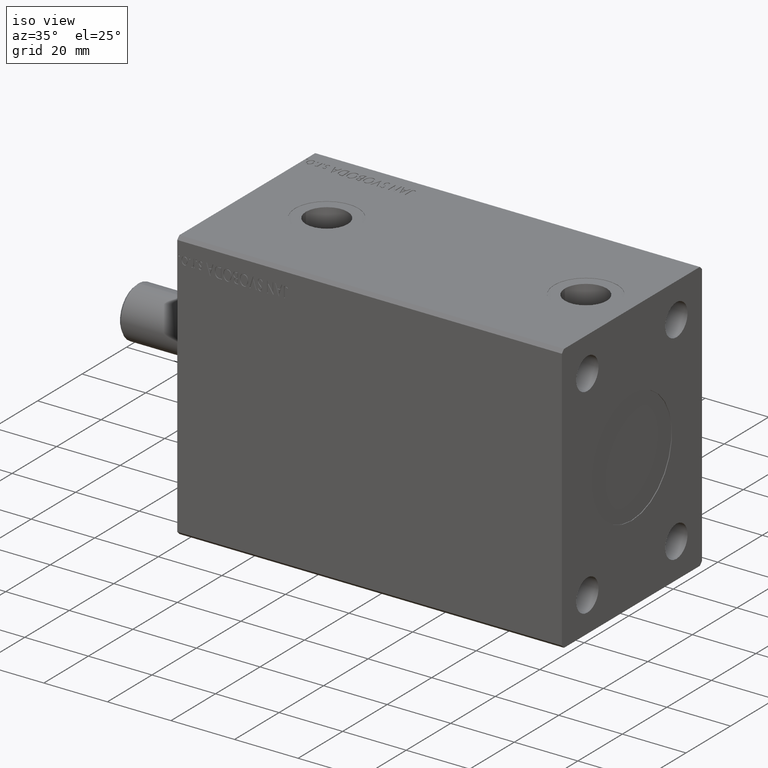
[diagram: clean part render]
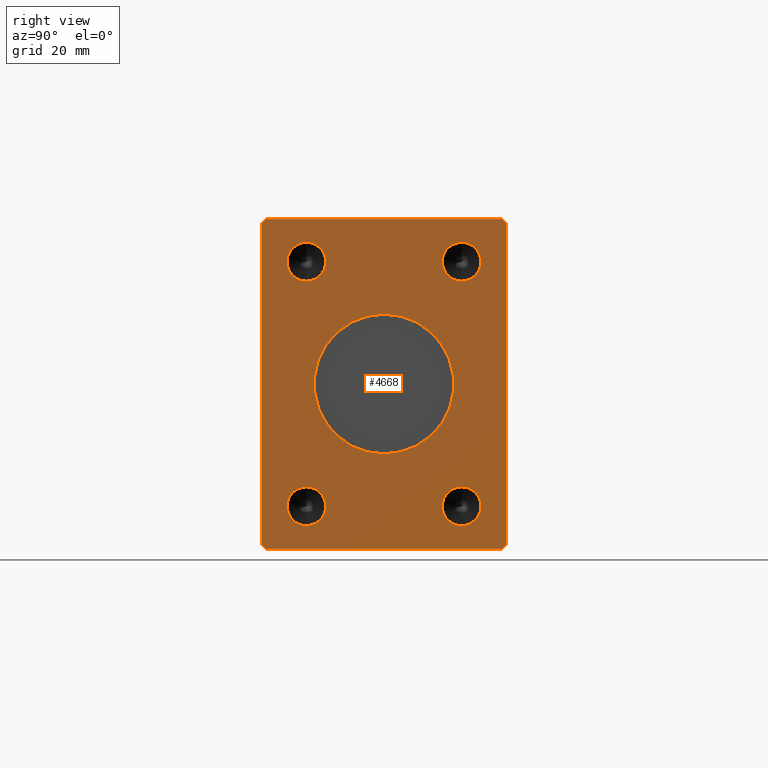
[diagram: tour spotlight — one face highlighted and labeled with its STEP entity id]
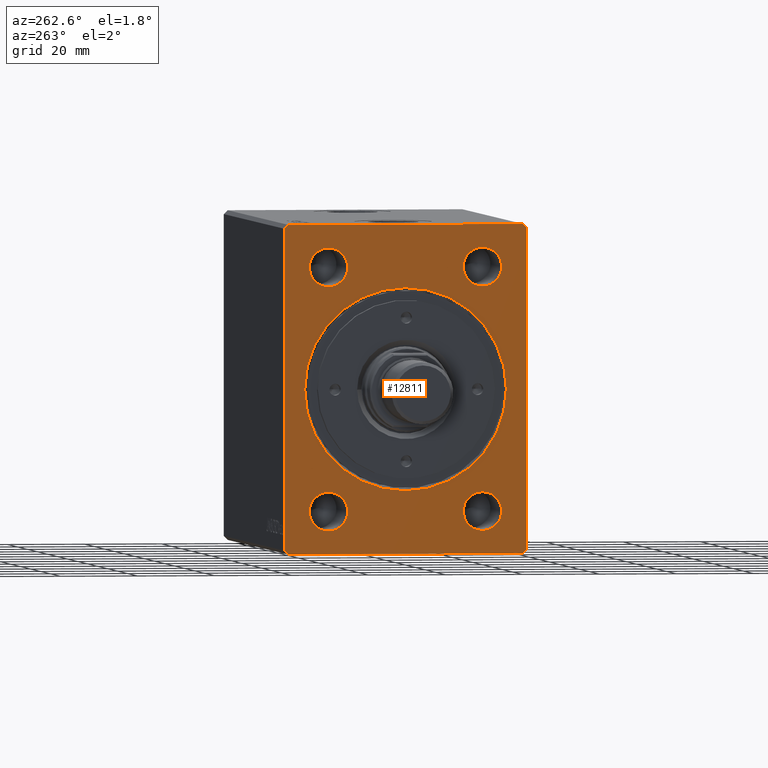
[diagram: tour spotlight — one face highlighted and labeled with its STEP entity id]
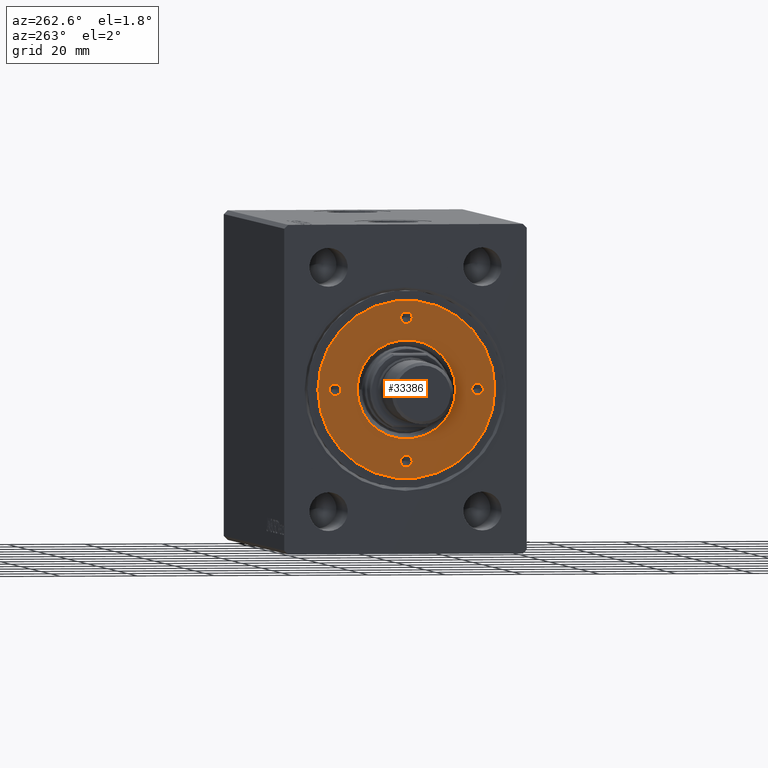
[diagram: tour spotlight — one face highlighted and labeled with its STEP entity id]
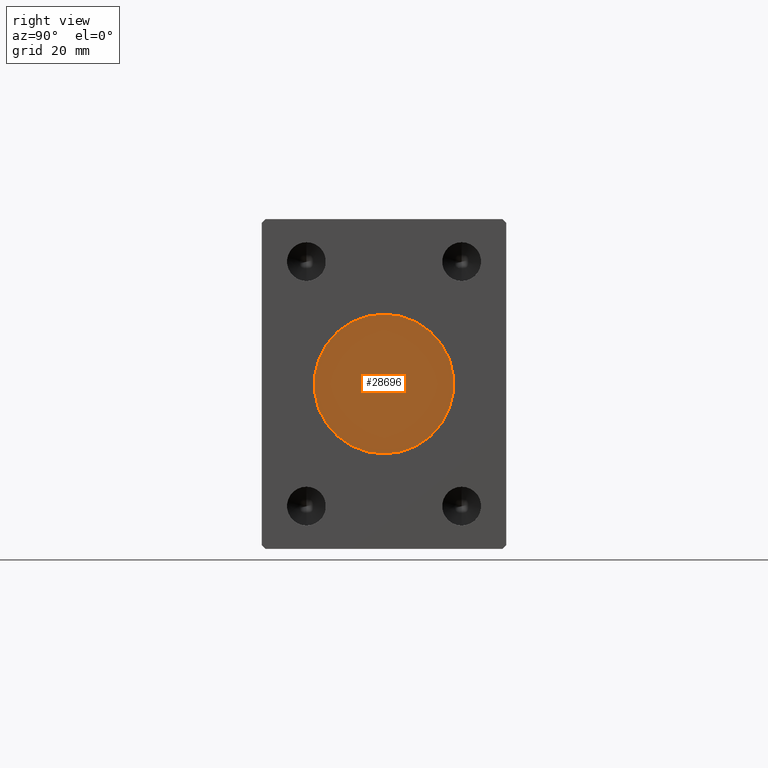
[diagram: tour spotlight — one face highlighted and labeled with its STEP entity id]
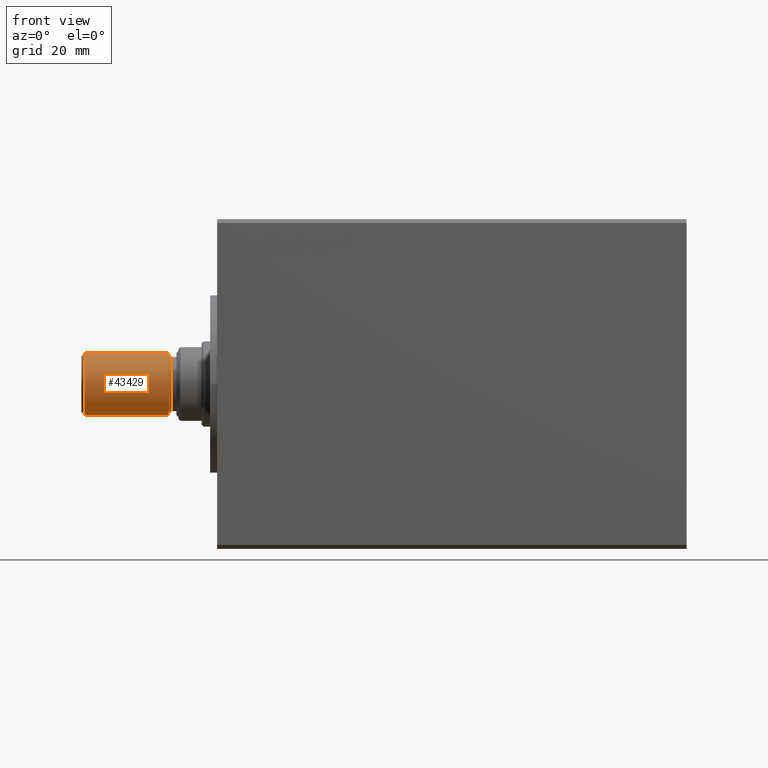
[diagram: tour spotlight — one face highlighted and labeled with its STEP entity id]
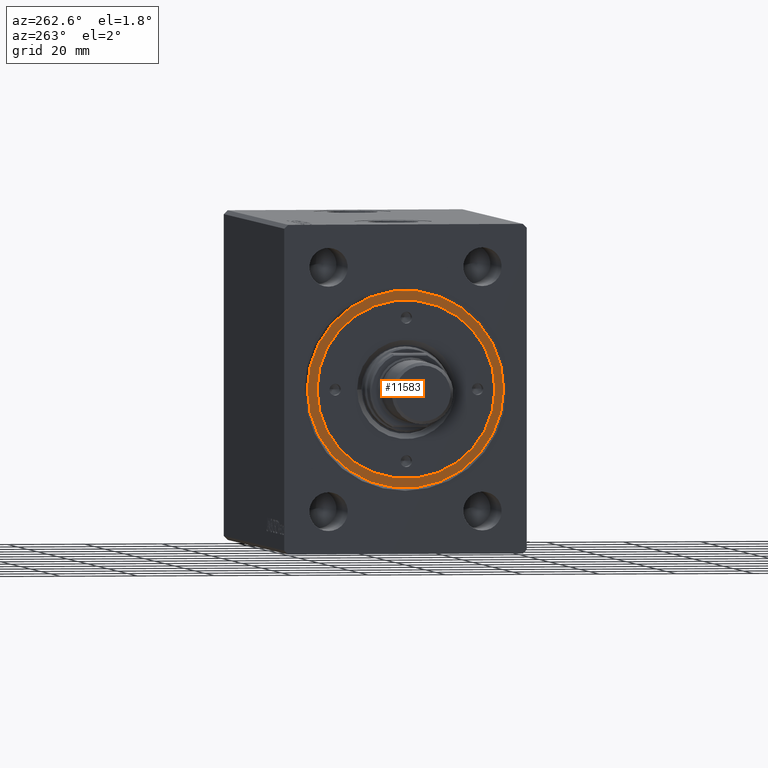
[diagram: tour spotlight — one face highlighted and labeled with its STEP entity id]
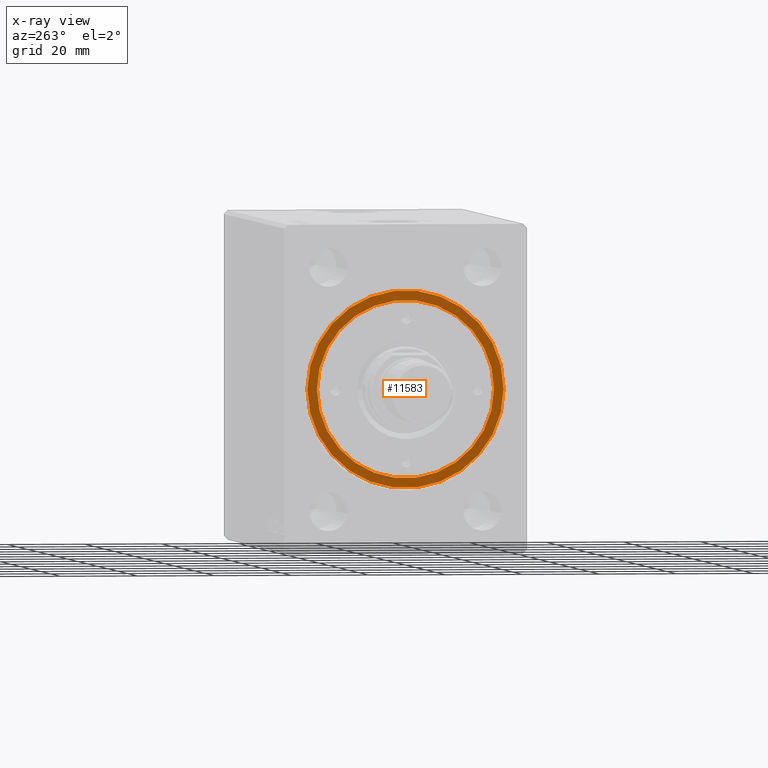
[diagram: x-ray of the same camera — body ghosted, this tour face saturated]
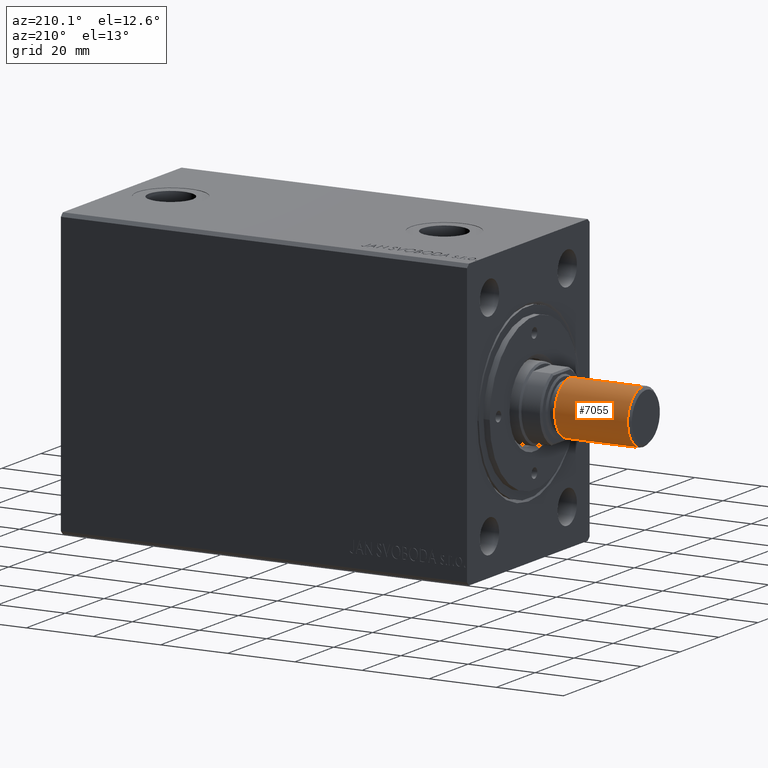
[diagram: tour spotlight — one face highlighted and labeled with its STEP entity id]
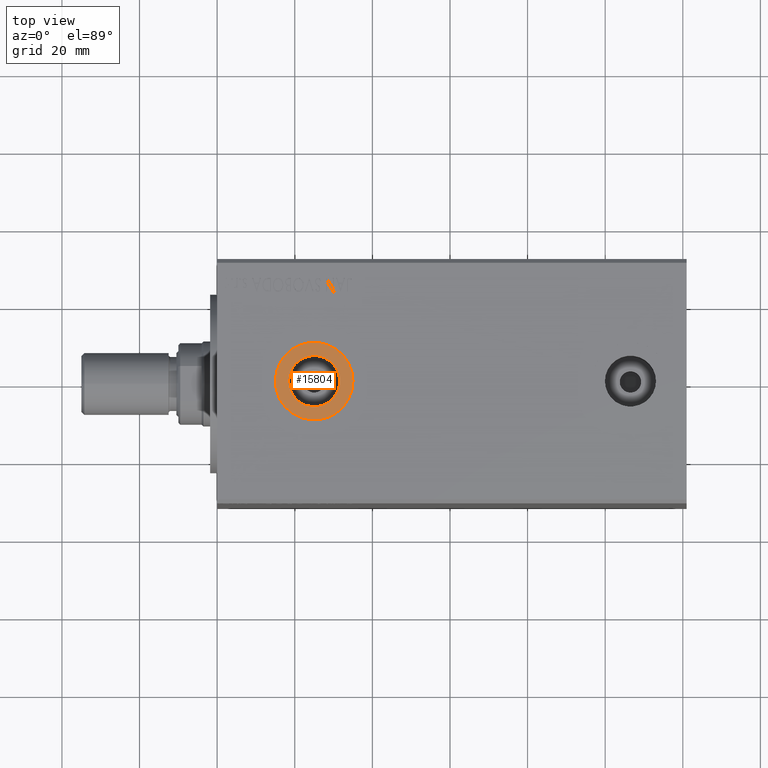
[diagram: tour spotlight — one face highlighted and labeled with its STEP entity id]
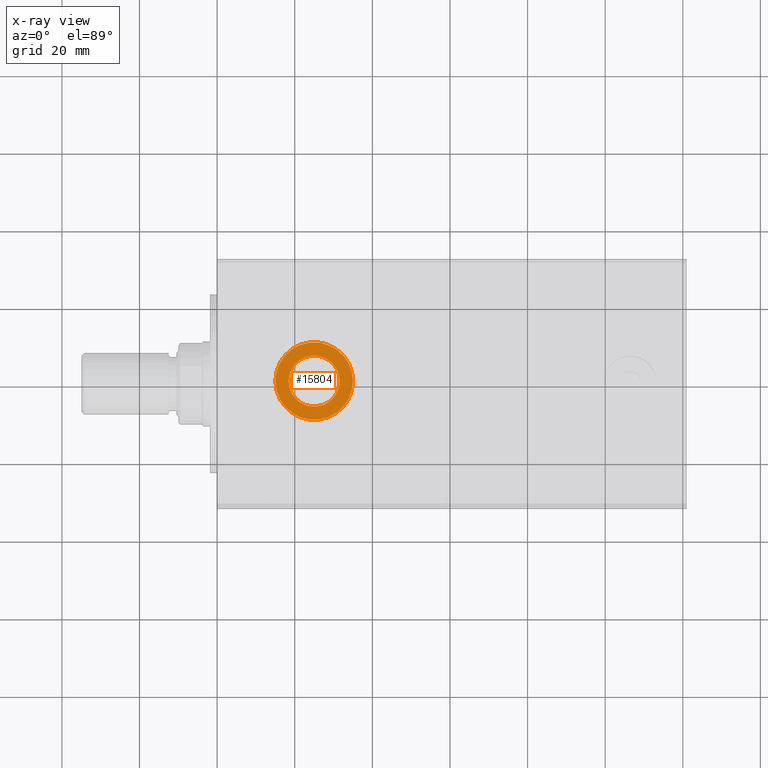
[diagram: x-ray of the same camera — body ghosted, this tour face saturated]
A machine part: a face-by-face anatomy tour. The part has 888 B-rep faces; the first image is the clean iso view, then the 8 largest visible faces are spotlighted one at a time (largest first), each with its STEP entity span.

Face 1 — right view, entity #4668. In plain terms, the highlighted planar face has unit normal (1, 0, 0).
Definition (entity closure, byte-faithful):
#292 = AXIS2_PLACEMENT_3D ( 'NONE', #2641, #20622, #30272 ) ;
#367 = VERTEX_POINT ( 'NONE', #19420 ) ;
#766 = DIRECTION ( 'NONE',  ( 0.000000000000000000, 0.000000000000000000, -1.000000000000000000 ) ) ;
#885 = LINE ( 'NONE', #14616, #4792 ) ;
#1455 = CARTESIAN_POINT ( 'NONE',  ( 121.0000000000000000, 0.000000000000000000, 0.000000000000000000 ) ) ;
#2157 = CIRCLE ( 'NONE', #36604, 4.999999999999997335 ) ;
#2641 = CARTESIAN_POINT ( 'NONE',  ( 121.0000000000000000, 0.000000000000000000, 0.000000000000000000 ) ) ;
#2702 = DIRECTION ( 'NONE',  ( 0.000000000000000000, 1.000000000000000000, 0.000000000000000000 ) ) ;
#2856 = FACE_OUTER_BOUND ( 'NONE', #34629, .T. ) ;
#3524 = FACE_BOUND ( 'NONE', #42190, .T. ) ;
#3627 = VERTEX_POINT ( 'NONE', #6943 ) ;
#3799 = DIRECTION ( 'NONE',  ( 1.000000000000000000, -0.000000000000000000, -0.000000000000000000 ) ) ;
#4668 = ADVANCED_FACE ( 'NONE', ( #20393, #16587, #9391, #6447, #3524, #2856 ), #44435, .T. ) ;
#4703 = VERTEX_POINT ( 'NONE', #12987 ) ;
#4792 = VECTOR ( 'NONE', #25166, 1000.000000000000114 ) ;
#4820 = CARTESIAN_POINT ( 'NONE',  ( 121.0000000000000000, 31.50000000000001421, -41.50000000000000711 ) ) ;
#4948 = EDGE_CURVE ( 'NONE', #37748, #44245, #43041, .T. ) ;
#5326 = AXIS2_PLACEMENT_3D ( 'NONE', #25296, #19002, #21924 ) ;
#5409 = CARTESIAN_POINT ( 'NONE',  ( 121.0000000000000000, -30.50000000000000355, 42.49999999999999289 ) ) ;
#6138 = CIRCLE ( 'NONE', #12638, 4.999999999999997335 ) ;
#6447 = FACE_BOUND ( 'NONE', #15637, .T. ) ;
#6943 = CARTESIAN_POINT ( 'NONE',  ( 121.0000000000000000, 0.000000000000000000, -18.00000000000000000 ) ) ;
#7291 = CARTESIAN_POINT ( 'NONE',  ( 121.0000000000000000, 19.99999999999999645, -31.50000000000000000 ) ) ;
#7520 = VECTOR ( 'NONE', #39209, 1000.000000000000000 ) ;
#7768 = EDGE_CURVE ( 'NONE', #27139, #37377, #24832, .T. ) ;
#8080 = DIRECTION ( 'NONE',  ( 0.000000000000000000, 0.000000000000000000, -1.000000000000000000 ) ) ;
#8785 = LINE ( 'NONE', #33270, #10083 ) ;
#9016 = DIRECTION ( 'NONE',  ( 0.000000000000000000, 0.7071067811865451302, -0.7071067811865500152 ) ) ;
#9123 = DIRECTION ( 'NONE',  ( 1.000000000000000000, 0.000000000000000000, 0.000000000000000000 ) ) ;
#9391 = FACE_BOUND ( 'NONE', #33886, .T. ) ;
#9907 = DIRECTION ( 'NONE',  ( 0.000000000000000000, 0.000000000000000000, -1.000000000000000000 ) ) ;
#10083 = VECTOR ( 'NONE', #2702, 1000.000000000000000 ) ;
#10119 = CARTESIAN_POINT ( 'NONE',  ( 121.0000000000000000, 30.50000000000001421, 42.49999999999999289 ) ) ;
#10607 = VERTEX_POINT ( 'NONE', #37832 ) ;
#10789 = CARTESIAN_POINT ( 'NONE',  ( 121.0000000000000000, 19.99999999999999645, 31.50000000000000000 ) ) ;
#11306 = CIRCLE ( 'NONE', #30686, 4.999999999999997335 ) ;
#11499 = AXIS2_PLACEMENT_3D ( 'NONE', #14624, #31466, #8080 ) ;
#11554 = AXIS2_PLACEMENT_3D ( 'NONE', #1455, #9123, #12269 ) ;
#11560 = LINE ( 'NONE', #29073, #12286 ) ;
#11596 = DIRECTION ( 'NONE',  ( 0.000000000000000000, 0.7071067811865462405, 0.7071067811865489050 ) ) ;
#11668 = EDGE_CURVE ( 'NONE', #32793, #43698, #6138, .T. ) ;
#11711 = DIRECTION ( 'NONE',  ( 0.000000000000000000, -0.7071067811865462405, -0.7071067811865489050 ) ) ;
#12155 = LINE ( 'NONE', #29220, #32289 ) ;
#12269 = DIRECTION ( 'NONE',  ( 0.000000000000000000, 0.000000000000000000, -1.000000000000000000 ) ) ;
#12286 = VECTOR ( 'NONE', #18529, 1000.000000000000000 ) ;
#12312 = DIRECTION ( 'NONE',  ( 1.000000000000000000, -0.000000000000000000, -0.000000000000000000 ) ) ;
#12547 = DIRECTION ( 'NONE',  ( 0.000000000000000000, 0.000000000000000000, -1.000000000000000000 ) ) ;
#12638 = AXIS2_PLACEMENT_3D ( 'NONE', #37237, #22663, #12547 ) ;
#12671 = VERTEX_POINT ( 'NONE', #15977 ) ;
#12987 = CARTESIAN_POINT ( 'NONE',  ( 121.0000000000000000, -20.00000000000000355, -36.50000000000000000 ) ) ;
#13316 = CARTESIAN_POINT ( 'NONE',  ( 121.0000000000000000, 19.99999999999999645, -36.50000000000000000 ) ) ;
#13496 = DIRECTION ( 'NONE',  ( 0.000000000000000000, 0.000000000000000000, -1.000000000000000000 ) ) ;
#13821 = DIRECTION ( 'NONE',  ( 1.000000000000000000, -0.000000000000000000, -0.000000000000000000 ) ) ;
#14616 = CARTESIAN_POINT ( 'NONE',  ( 121.0000000000000000, 31.50000000000001421, 41.49999999999999289 ) ) ;
#14624 = CARTESIAN_POINT ( 'NONE',  ( 121.0000000000000000, -20.00000000000000355, -31.50000000000000000 ) ) ;
#14664 = EDGE_CURVE ( 'NONE', #12671, #37748, #38572, .T. ) ;
#14703 = EDGE_CURVE ( 'NONE', #24410, #3627, #41404, .T. ) ;
#14931 = EDGE_CURVE ( 'NONE', #44245, #41437, #885, .T. ) ;
#15106 = CIRCLE ( 'NONE', #11499, 4.999999999999997335 ) ;
#15333 = CARTESIAN_POINT ( 'NONE',  ( 121.0000000000000000, -20.00000000000000355, -26.50000000000000355 ) ) ;
#15637 = EDGE_LOOP ( 'NONE', ( #43343, #25984 ) ) ;
#15692 = CARTESIAN_POINT ( 'NONE',  ( 121.0000000000000000, -20.00000000000000355, -31.50000000000000000 ) ) ;
#15977 = CARTESIAN_POINT ( 'NONE',  ( 121.0000000000000000, 30.50000000000001776, -42.50000000000000711 ) ) ;
#16587 = FACE_BOUND ( 'NONE', #20904, .T. ) ;
#16638 = AXIS2_PLACEMENT_3D ( 'NONE', #15692, #12312, #26019 ) ;
#16986 = DIRECTION ( 'NONE',  ( 0.000000000000000000, 0.000000000000000000, -1.000000000000000000 ) ) ;
#17248 = CARTESIAN_POINT ( 'NONE',  ( 121.0000000000000000, 19.99999999999999645, -26.50000000000000355 ) ) ;
#17866 = CARTESIAN_POINT ( 'NONE',  ( 121.0000000000000000, -31.50000000000000000, 41.49999999999999289 ) ) ;
#17981 = CIRCLE ( 'NONE', #24425, 4.999999999999997335 ) ;
#18529 = DIRECTION ( 'NONE',  ( 0.000000000000000000, -1.000000000000000000, 0.000000000000000000 ) ) ;
#18563 = CARTESIAN_POINT ( 'NONE',  ( 121.0000000000000000, 0.000000000000000000, 0.000000000000000000 ) ) ;
#18767 = ORIENTED_EDGE ( 'NONE', *, *, #14703, .F. ) ;
#19002 = DIRECTION ( 'NONE',  ( 1.000000000000000000, -0.000000000000000000, -0.000000000000000000 ) ) ;
#19387 = VECTOR ( 'NONE', #766, 1000.000000000000000 ) ;
#19420 = CARTESIAN_POINT ( 'NONE',  ( 121.0000000000000000, -31.50000000000000000, 41.49999999999999289 ) ) ;
#20249 = VECTOR ( 'NONE', #11711, 999.9999999999998863 ) ;
#20269 = EDGE_CURVE ( 'NONE', #367, #23262, #34044, .T. ) ;
#20393 = FACE_BOUND ( 'NONE', #42625, .T. ) ;
#20622 = DIRECTION ( 'NONE',  ( 1.000000000000000000, 0.000000000000000000, 0.000000000000000000 ) ) ;
#20743 = EDGE_CURVE ( 'NONE', #26869, #26296, #17981, .T. ) ;
#20783 = DIRECTION ( 'NONE',  ( 0.000000000000000000, 0.000000000000000000, -1.000000000000000000 ) ) ;
#20904 = EDGE_LOOP ( 'NONE', ( #30290, #27171 ) ) ;
#21227 = DIRECTION ( 'NONE',  ( 1.000000000000000000, -0.000000000000000000, -0.000000000000000000 ) ) ;
#21314 = ORIENTED_EDGE ( 'NONE', *, *, #25924, .T. ) ;
#21924 = DIRECTION ( 'NONE',  ( 0.000000000000000000, 0.000000000000000000, -1.000000000000000000 ) ) ;
#21995 = CARTESIAN_POINT ( 'NONE',  ( 121.0000000000000000, -20.00000000000000355, 36.50000000000000000 ) ) ;
#22053 = AXIS2_PLACEMENT_3D ( 'NONE', #18563, #41952, #31604 ) ;
#22663 = DIRECTION ( 'NONE',  ( 1.000000000000000000, -0.000000000000000000, -0.000000000000000000 ) ) ;
#22756 = CARTESIAN_POINT ( 'NONE',  ( 121.0000000000000000, 19.99999999999999645, 36.50000000000000000 ) ) ;
#23039 = ORIENTED_EDGE ( 'NONE', *, *, #14664, .T. ) ;
#23262 = VERTEX_POINT ( 'NONE', #31737 ) ;
#23478 = VECTOR ( 'NONE', #11596, 999.9999999999998863 ) ;
#23488 = ORIENTED_EDGE ( 'NONE', *, *, #14931, .T. ) ;
#23677 = EDGE_CURVE ( 'NONE', #30438, #4703, #30954, .T. ) ;
#23706 = ORIENTED_EDGE ( 'NONE', *, *, #27911, .F. ) ;
#24066 = DIRECTION ( 'NONE',  ( 1.000000000000000000, -0.000000000000000000, -0.000000000000000000 ) ) ;
#24214 = ORIENTED_EDGE ( 'NONE', *, *, #25665, .F. ) ;
#24410 = VERTEX_POINT ( 'NONE', #43385 ) ;
#24425 = AXIS2_PLACEMENT_3D ( 'NONE', #10789, #24066, #9907 ) ;
#24779 = EDGE_CURVE ( 'NONE', #37377, #27139, #33735, .T. ) ;
#24832 = CIRCLE ( 'NONE', #5326, 4.999999999999997335 ) ;
#25166 = DIRECTION ( 'NONE',  ( 0.000000000000000000, -0.7071067811865474617, 0.7071067811865474617 ) ) ;
#25218 = EDGE_CURVE ( 'NONE', #31658, #12671, #8785, .T. ) ;
#25296 = CARTESIAN_POINT ( 'NONE',  ( 121.0000000000000000, 19.99999999999999645, -31.50000000000000000 ) ) ;
#25665 = EDGE_CURVE ( 'NONE', #4703, #30438, #15106, .T. ) ;
#25924 = EDGE_CURVE ( 'NONE', #41437, #10607, #11560, .T. ) ;
#25984 = ORIENTED_EDGE ( 'NONE', *, *, #7768, .F. ) ;
#26019 = DIRECTION ( 'NONE',  ( 0.000000000000000000, 0.000000000000000000, -1.000000000000000000 ) ) ;
#26296 = VERTEX_POINT ( 'NONE', #22756 ) ;
#26333 = CARTESIAN_POINT ( 'NONE',  ( 121.0000000000000000, -30.50000000000000711, -42.50000000000000711 ) ) ;
#26653 = CIRCLE ( 'NONE', #11554, 18.00000000000000000 ) ;
#26869 = VERTEX_POINT ( 'NONE', #32281 ) ;
#27139 = VERTEX_POINT ( 'NONE', #17248 ) ;
#27171 = ORIENTED_EDGE ( 'NONE', *, *, #41849, .F. ) ;
#27233 = ORIENTED_EDGE ( 'NONE', *, *, #4948, .T. ) ;
#27804 = CARTESIAN_POINT ( 'NONE',  ( 121.0000000000000000, 30.50000000000001776, -42.50000000000000711 ) ) ;
#27911 = EDGE_CURVE ( 'NONE', #3627, #24410, #26653, .T. ) ;
#28651 = CARTESIAN_POINT ( 'NONE',  ( 121.0000000000000000, 31.50000000000001421, -41.50000000000000711 ) ) ;
#28837 = EDGE_CURVE ( 'NONE', #10607, #367, #42274, .T. ) ;
#29073 = CARTESIAN_POINT ( 'NONE',  ( 121.0000000000000000, 30.50000000000001421, 42.49999999999999289 ) ) ;
#29220 = CARTESIAN_POINT ( 'NONE',  ( 121.0000000000000000, -31.50000000000000000, -41.50000000000000711 ) ) ;
#29786 = ORIENTED_EDGE ( 'NONE', *, *, #25218, .T. ) ;
#30272 = DIRECTION ( 'NONE',  ( 0.000000000000000000, 0.000000000000000000, -1.000000000000000000 ) ) ;
#30290 = ORIENTED_EDGE ( 'NONE', *, *, #20743, .F. ) ;
#30329 = ORIENTED_EDGE ( 'NONE', *, *, #20269, .T. ) ;
#30438 = VERTEX_POINT ( 'NONE', #15333 ) ;
#30558 = ORIENTED_EDGE ( 'NONE', *, *, #42209, .T. ) ;
#30686 = AXIS2_PLACEMENT_3D ( 'NONE', #38177, #3799, #13496 ) ;
#30954 = CIRCLE ( 'NONE', #16638, 4.999999999999997335 ) ;
#31466 = DIRECTION ( 'NONE',  ( 1.000000000000000000, -0.000000000000000000, -0.000000000000000000 ) ) ;
#31604 = DIRECTION ( 'NONE',  ( 0.000000000000000000, 0.000000000000000000, -1.000000000000000000 ) ) ;
#31658 = VERTEX_POINT ( 'NONE', #26333 ) ;
#31737 = CARTESIAN_POINT ( 'NONE',  ( 121.0000000000000000, -31.50000000000000000, -41.50000000000000711 ) ) ;
#32281 = CARTESIAN_POINT ( 'NONE',  ( 121.0000000000000000, 19.99999999999999645, 26.50000000000000355 ) ) ;
#32289 = VECTOR ( 'NONE', #9016, 1000.000000000000114 ) ;
#32593 = ORIENTED_EDGE ( 'NONE', *, *, #28837, .T. ) ;
#32614 = CARTESIAN_POINT ( 'NONE',  ( 121.0000000000000000, -20.00000000000000355, 26.50000000000000355 ) ) ;
#32793 = VERTEX_POINT ( 'NONE', #32614 ) ;
#33270 = CARTESIAN_POINT ( 'NONE',  ( 121.0000000000000000, -30.50000000000000711, -42.50000000000000711 ) ) ;
#33735 = CIRCLE ( 'NONE', #39465, 4.999999999999997335 ) ;
#33886 = EDGE_LOOP ( 'NONE', ( #24214, #35558 ) ) ;
#34044 = LINE ( 'NONE', #17866, #19387 ) ;
#34629 = EDGE_LOOP ( 'NONE', ( #23488, #21314, #32593, #30329, #30558, #29786, #23039, #27233 ) ) ;
#35140 = EDGE_CURVE ( 'NONE', #43698, #32793, #11306, .T. ) ;
#35558 = ORIENTED_EDGE ( 'NONE', *, *, #23677, .F. ) ;
#36604 = AXIS2_PLACEMENT_3D ( 'NONE', #41007, #13821, #20783 ) ;
#37197 = CARTESIAN_POINT ( 'NONE',  ( 121.0000000000000000, 31.50000000000001421, 41.49999999999999289 ) ) ;
#37237 = CARTESIAN_POINT ( 'NONE',  ( 121.0000000000000000, -20.00000000000000355, 31.50000000000000000 ) ) ;
#37377 = VERTEX_POINT ( 'NONE', #13316 ) ;
#37450 = ORIENTED_EDGE ( 'NONE', *, *, #35140, .F. ) ;
#37748 = VERTEX_POINT ( 'NONE', #4820 ) ;
#37832 = CARTESIAN_POINT ( 'NONE',  ( 121.0000000000000000, -30.50000000000000355, 42.49999999999999289 ) ) ;
#38177 = CARTESIAN_POINT ( 'NONE',  ( 121.0000000000000000, -20.00000000000000355, 31.50000000000000000 ) ) ;
#38572 = LINE ( 'NONE', #27804, #23478 ) ;
#39154 = ORIENTED_EDGE ( 'NONE', *, *, #11668, .F. ) ;
#39209 = DIRECTION ( 'NONE',  ( 0.000000000000000000, 0.000000000000000000, 1.000000000000000000 ) ) ;
#39465 = AXIS2_PLACEMENT_3D ( 'NONE', #7291, #21227, #16986 ) ;
#41007 = CARTESIAN_POINT ( 'NONE',  ( 121.0000000000000000, 19.99999999999999645, 31.50000000000000000 ) ) ;
#41404 = CIRCLE ( 'NONE', #22053, 18.00000000000000000 ) ;
#41437 = VERTEX_POINT ( 'NONE', #10119 ) ;
#41849 = EDGE_CURVE ( 'NONE', #26296, #26869, #2157, .T. ) ;
#41952 = DIRECTION ( 'NONE',  ( 1.000000000000000000, 0.000000000000000000, 0.000000000000000000 ) ) ;
#42190 = EDGE_LOOP ( 'NONE', ( #39154, #37450 ) ) ;
#42209 = EDGE_CURVE ( 'NONE', #23262, #31658, #12155, .T. ) ;
#42274 = LINE ( 'NONE', #5409, #20249 ) ;
#42625 = EDGE_LOOP ( 'NONE', ( #23706, #18767 ) ) ;
#43041 = LINE ( 'NONE', #28651, #7520 ) ;
#43343 = ORIENTED_EDGE ( 'NONE', *, *, #24779, .F. ) ;
#43385 = CARTESIAN_POINT ( 'NONE',  ( 121.0000000000000000, 2.204364238465235428E-15, 18.00000000000000000 ) ) ;
#43698 = VERTEX_POINT ( 'NONE', #21995 ) ;
#44245 = VERTEX_POINT ( 'NONE', #37197 ) ;
#44435 = PLANE ( 'NONE',  #292 ) ;

Face 2 — auxiliary view, entity #12811. In plain terms, the highlighted planar face has unit normal (1, 0, 0).
Definition (entity closure, byte-faithful):
#915 = DIRECTION ( 'NONE',  ( 0.000000000000000000, 0.000000000000000000, -1.000000000000000000 ) ) ;
#1220 = VERTEX_POINT ( 'NONE', #39014 ) ;
#1376 = CIRCLE ( 'NONE', #20084, 26.20000000000001350 ) ;
#1401 = VERTEX_POINT ( 'NONE', #43301 ) ;
#1540 = LINE ( 'NONE', #15730, #33561 ) ;
#1786 = AXIS2_PLACEMENT_3D ( 'NONE', #24898, #27813, #38581 ) ;
#2657 = DIRECTION ( 'NONE',  ( 0.000000000000000000, 0.000000000000000000, 1.000000000000000000 ) ) ;
#2708 = AXIS2_PLACEMENT_3D ( 'NONE', #34397, #3614, #27670 ) ;
#2899 = VERTEX_POINT ( 'NONE', #13537 ) ;
#3184 = CARTESIAN_POINT ( 'NONE',  ( 0.000000000000000000, 0.000000000000000000, 0.000000000000000000 ) ) ;
#3415 = CARTESIAN_POINT ( 'NONE',  ( 0.000000000000000000, 0.000000000000000000, 26.20000000000001350 ) ) ;
#3614 = DIRECTION ( 'NONE',  ( -1.000000000000000000, -0.000000000000000000, -0.000000000000000000 ) ) ;
#3709 = CARTESIAN_POINT ( 'NONE',  ( 0.000000000000000000, 30.50000000000001421, 42.49999999999999289 ) ) ;
#3766 = EDGE_CURVE ( 'NONE', #18172, #11814, #8934, .T. ) ;
#4170 = FACE_BOUND ( 'NONE', #8264, .T. ) ;
#4509 = ORIENTED_EDGE ( 'NONE', *, *, #35467, .F. ) ;
#4674 = CARTESIAN_POINT ( 'NONE',  ( 1.224646799147350495E-16, 19.99999999999999645, -31.50000000000000000 ) ) ;
#4765 = VERTEX_POINT ( 'NONE', #32027 ) ;
#5239 = CARTESIAN_POINT ( 'NONE',  ( 0.000000000000000000, -30.50000000000000355, 42.49999999999999289 ) ) ;
#5442 = ORIENTED_EDGE ( 'NONE', *, *, #38799, .F. ) ;
#5519 = AXIS2_PLACEMENT_3D ( 'NONE', #43304, #19491, #36328 ) ;
#6665 = CARTESIAN_POINT ( 'NONE',  ( 0.000000000000000000, 0.000000000000000000, 0.000000000000000000 ) ) ;
#6960 = ORIENTED_EDGE ( 'NONE', *, *, #19289, .T. ) ;
#6976 = CIRCLE ( 'NONE', #5519, 26.20000000000001350 ) ;
#8015 = CARTESIAN_POINT ( 'NONE',  ( 1.224646799147350495E-16, 19.99999999999999645, 31.50000000000000000 ) ) ;
#8097 = VERTEX_POINT ( 'NONE', #28813 ) ;
#8264 = EDGE_LOOP ( 'NONE', ( #23397, #23512 ) ) ;
#8934 = LINE ( 'NONE', #25341, #31170 ) ;
#9097 = CARTESIAN_POINT ( 'NONE',  ( 1.224646799147350495E-16, -20.00000000000000355, -31.50000000000000000 ) ) ;
#9188 = EDGE_LOOP ( 'NONE', ( #27660, #6960 ) ) ;
#9407 = AXIS2_PLACEMENT_3D ( 'NONE', #9097, #33353, #18985 ) ;
#9922 = VERTEX_POINT ( 'NONE', #43422 ) ;
#10180 = VECTOR ( 'NONE', #13840, 999.9999999999998863 ) ;
#10250 = CARTESIAN_POINT ( 'NONE',  ( 0.000000000000000000, 30.50000000000001776, -42.50000000000000711 ) ) ;
#10767 = DIRECTION ( 'NONE',  ( -1.000000000000000000, -0.000000000000000000, -0.000000000000000000 ) ) ;
#11393 = DIRECTION ( 'NONE',  ( -1.000000000000000000, -0.000000000000000000, -0.000000000000000000 ) ) ;
#11814 = VERTEX_POINT ( 'NONE', #34743 ) ;
#11822 = ORIENTED_EDGE ( 'NONE', *, *, #28190, .F. ) ;
#12322 = AXIS2_PLACEMENT_3D ( 'NONE', #4674, #24941, #25585 ) ;
#12811 = ADVANCED_FACE ( 'NONE', ( #31148, #4170, #30928, #27999, #27348, #37452 ), #41490, .F. ) ;
#13339 = VERTEX_POINT ( 'NONE', #3415 ) ;
#13537 = CARTESIAN_POINT ( 'NONE',  ( 1.224646799147350495E-16, -20.00000000000000355, 36.50000000000000000 ) ) ;
#13582 = ORIENTED_EDGE ( 'NONE', *, *, #31379, .F. ) ;
#13840 = DIRECTION ( 'NONE',  ( 0.000000000000000000, 0.7071067811865462405, 0.7071067811865489050 ) ) ;
#14403 = CARTESIAN_POINT ( 'NONE',  ( 0.000000000000000000, 30.50000000000001421, 42.49999999999999289 ) ) ;
#14409 = DIRECTION ( 'NONE',  ( 0.000000000000000000, -0.7071067811865474617, 0.7071067811865474617 ) ) ;
#14864 = ORIENTED_EDGE ( 'NONE', *, *, #17390, .F. ) ;
#14865 = VERTEX_POINT ( 'NONE', #36524 ) ;
#14868 = CARTESIAN_POINT ( 'NONE',  ( 0.000000000000000000, -31.50000000000000000, 41.49999999999999289 ) ) ;
#15135 = VERTEX_POINT ( 'NONE', #20202 ) ;
#15343 = VECTOR ( 'NONE', #41742, 999.9999999999998863 ) ;
#15485 = VERTEX_POINT ( 'NONE', #17667 ) ;
#15730 = CARTESIAN_POINT ( 'NONE',  ( 0.000000000000000000, -30.50000000000000711, -42.50000000000000711 ) ) ;
#15846 = EDGE_CURVE ( 'NONE', #13339, #43306, #6976, .T. ) ;
#16601 = EDGE_CURVE ( 'NONE', #4765, #15135, #34976, .T. ) ;
#16915 = DIRECTION ( 'NONE',  ( 1.000000000000000000, 0.000000000000000000, 0.000000000000000000 ) ) ;
#16945 = EDGE_CURVE ( 'NONE', #39424, #2899, #30681, .T. ) ;
#17067 = AXIS2_PLACEMENT_3D ( 'NONE', #37727, #10767, #34355 ) ;
#17107 = DIRECTION ( 'NONE',  ( 0.000000000000000000, 0.000000000000000000, 1.000000000000000000 ) ) ;
#17113 = DIRECTION ( 'NONE',  ( 0.000000000000000000, -1.000000000000000000, 0.000000000000000000 ) ) ;
#17269 = CARTESIAN_POINT ( 'NONE',  ( 0.000000000000000000, 3.208574613766067271E-15, -26.20000000000001350 ) ) ;
#17390 = EDGE_CURVE ( 'NONE', #11814, #1220, #1540, .T. ) ;
#17667 = CARTESIAN_POINT ( 'NONE',  ( 1.224646799147350495E-16, 19.99999999999999645, 26.50000000000000355 ) ) ;
#17900 = DIRECTION ( 'NONE',  ( 1.000000000000000000, 0.000000000000000000, 0.000000000000000000 ) ) ;
#18172 = VERTEX_POINT ( 'NONE', #30314 ) ;
#18257 = CARTESIAN_POINT ( 'NONE',  ( 1.224646799147350495E-16, -20.00000000000000355, 26.50000000000000355 ) ) ;
#18379 = ORIENTED_EDGE ( 'NONE', *, *, #3766, .F. ) ;
#18985 = DIRECTION ( 'NONE',  ( 0.000000000000000000, 0.000000000000000000, 1.000000000000000000 ) ) ;
#19289 = EDGE_CURVE ( 'NONE', #43306, #13339, #1376, .T. ) ;
#19491 = DIRECTION ( 'NONE',  ( 1.000000000000000000, 0.000000000000000000, 0.000000000000000000 ) ) ;
#20084 = AXIS2_PLACEMENT_3D ( 'NONE', #3184, #16915, #31212 ) ;
#20202 = CARTESIAN_POINT ( 'NONE',  ( 1.224646799147350495E-16, -20.00000000000000355, -26.50000000000000355 ) ) ;
#20885 = DIRECTION ( 'NONE',  ( 0.000000000000000000, 0.000000000000000000, 1.000000000000000000 ) ) ;
#21013 = EDGE_CURVE ( 'NONE', #14865, #27943, #26272, .T. ) ;
#21576 = EDGE_CURVE ( 'NONE', #9922, #8097, #43833, .T. ) ;
#21578 = EDGE_LOOP ( 'NONE', ( #39672, #5442 ) ) ;
#22258 = LINE ( 'NONE', #14868, #37865 ) ;
#22640 = EDGE_LOOP ( 'NONE', ( #34207, #24771, #43480, #14864, #18379, #24536, #32632, #4509 ) ) ;
#23103 = EDGE_CURVE ( 'NONE', #15135, #4765, #24492, .T. ) ;
#23170 = ORIENTED_EDGE ( 'NONE', *, *, #21576, .F. ) ;
#23342 = CIRCLE ( 'NONE', #1786, 4.999999999999997335 ) ;
#23397 = ORIENTED_EDGE ( 'NONE', *, *, #23103, .F. ) ;
#23446 = CARTESIAN_POINT ( 'NONE',  ( 1.224646799147350495E-16, 19.99999999999999645, 36.50000000000000000 ) ) ;
#23512 = ORIENTED_EDGE ( 'NONE', *, *, #16601, .F. ) ;
#24205 = DIRECTION ( 'NONE',  ( 0.000000000000000000, 0.000000000000000000, -1.000000000000000000 ) ) ;
#24288 = DIRECTION ( 'NONE',  ( -1.000000000000000000, -0.000000000000000000, -0.000000000000000000 ) ) ;
#24455 = CARTESIAN_POINT ( 'NONE',  ( 0.000000000000000000, -30.50000000000000355, 42.49999999999999289 ) ) ;
#24492 = CIRCLE ( 'NONE', #9407, 4.999999999999997335 ) ;
#24536 = ORIENTED_EDGE ( 'NONE', *, *, #34958, .F. ) ;
#24771 = ORIENTED_EDGE ( 'NONE', *, *, #21013, .F. ) ;
#24894 = VERTEX_POINT ( 'NONE', #23446 ) ;
#24898 = CARTESIAN_POINT ( 'NONE',  ( 1.224646799147350495E-16, -20.00000000000000355, 31.50000000000000000 ) ) ;
#24941 = DIRECTION ( 'NONE',  ( -1.000000000000000000, -0.000000000000000000, -0.000000000000000000 ) ) ;
#25324 = DIRECTION ( 'NONE',  ( 0.000000000000000000, 0.000000000000000000, 1.000000000000000000 ) ) ;
#25341 = CARTESIAN_POINT ( 'NONE',  ( 0.000000000000000000, -31.50000000000000000, -41.50000000000000711 ) ) ;
#25585 = DIRECTION ( 'NONE',  ( 0.000000000000000000, 0.000000000000000000, 1.000000000000000000 ) ) ;
#25701 = EDGE_CURVE ( 'NONE', #27943, #31593, #38858, .T. ) ;
#26272 = LINE ( 'NONE', #33446, #35911 ) ;
#26751 = EDGE_CURVE ( 'NONE', #24894, #15485, #31651, .T. ) ;
#27202 = CARTESIAN_POINT ( 'NONE',  ( 1.224646799147350495E-16, 19.99999999999999645, -31.50000000000000000 ) ) ;
#27348 = FACE_BOUND ( 'NONE', #9188, .T. ) ;
#27534 = LINE ( 'NONE', #10250, #10180 ) ;
#27660 = ORIENTED_EDGE ( 'NONE', *, *, #15846, .T. ) ;
#27670 = DIRECTION ( 'NONE',  ( 0.000000000000000000, 0.000000000000000000, 1.000000000000000000 ) ) ;
#27813 = DIRECTION ( 'NONE',  ( -1.000000000000000000, -0.000000000000000000, -0.000000000000000000 ) ) ;
#27841 = CARTESIAN_POINT ( 'NONE',  ( 1.224646799147350495E-16, 19.99999999999999645, 31.50000000000000000 ) ) ;
#27943 = VERTEX_POINT ( 'NONE', #35625 ) ;
#27999 = FACE_BOUND ( 'NONE', #34177, .T. ) ;
#28190 = EDGE_CURVE ( 'NONE', #8097, #9922, #35239, .T. ) ;
#28425 = AXIS2_PLACEMENT_3D ( 'NONE', #6665, #17900, #24205 ) ;
#28769 = ORIENTED_EDGE ( 'NONE', *, *, #16945, .F. ) ;
#28813 = CARTESIAN_POINT ( 'NONE',  ( 1.224646799147350495E-16, 19.99999999999999645, -26.50000000000000355 ) ) ;
#29225 = EDGE_CURVE ( 'NONE', #1220, #14865, #27534, .T. ) ;
#30314 = CARTESIAN_POINT ( 'NONE',  ( 0.000000000000000000, -31.50000000000000000, -41.50000000000000711 ) ) ;
#30681 = CIRCLE ( 'NONE', #17067, 4.999999999999997335 ) ;
#30928 = FACE_BOUND ( 'NONE', #42212, .T. ) ;
#31148 = FACE_BOUND ( 'NONE', #21578, .T. ) ;
#31170 = VECTOR ( 'NONE', #42632, 1000.000000000000114 ) ;
#31212 = DIRECTION ( 'NONE',  ( 0.000000000000000000, 0.000000000000000000, -1.000000000000000000 ) ) ;
#31379 = EDGE_CURVE ( 'NONE', #2899, #39424, #23342, .T. ) ;
#31593 = VERTEX_POINT ( 'NONE', #3709 ) ;
#31651 = CIRCLE ( 'NONE', #42387, 4.999999999999997335 ) ;
#32027 = CARTESIAN_POINT ( 'NONE',  ( 1.224646799147350495E-16, -20.00000000000000355, -36.50000000000000000 ) ) ;
#32632 = ORIENTED_EDGE ( 'NONE', *, *, #38647, .F. ) ;
#33353 = DIRECTION ( 'NONE',  ( -1.000000000000000000, -0.000000000000000000, -0.000000000000000000 ) ) ;
#33446 = CARTESIAN_POINT ( 'NONE',  ( 0.000000000000000000, 31.50000000000001421, -41.50000000000000711 ) ) ;
#33561 = VECTOR ( 'NONE', #35927, 1000.000000000000000 ) ;
#34174 = LINE ( 'NONE', #14403, #35010 ) ;
#34177 = EDGE_LOOP ( 'NONE', ( #13582, #28769 ) ) ;
#34207 = ORIENTED_EDGE ( 'NONE', *, *, #25701, .F. ) ;
#34355 = DIRECTION ( 'NONE',  ( 0.000000000000000000, 0.000000000000000000, 1.000000000000000000 ) ) ;
#34397 = CARTESIAN_POINT ( 'NONE',  ( 1.224646799147350495E-16, -20.00000000000000355, -31.50000000000000000 ) ) ;
#34743 = CARTESIAN_POINT ( 'NONE',  ( 0.000000000000000000, -30.50000000000000711, -42.50000000000000711 ) ) ;
#34958 = EDGE_CURVE ( 'NONE', #1401, #18172, #22258, .T. ) ;
#34976 = CIRCLE ( 'NONE', #2708, 4.999999999999997335 ) ;
#35010 = VECTOR ( 'NONE', #17113, 1000.000000000000000 ) ;
#35017 = DIRECTION ( 'NONE',  ( -1.000000000000000000, -0.000000000000000000, -0.000000000000000000 ) ) ;
#35239 = CIRCLE ( 'NONE', #12322, 4.999999999999997335 ) ;
#35375 = VERTEX_POINT ( 'NONE', #5239 ) ;
#35467 = EDGE_CURVE ( 'NONE', #31593, #35375, #34174, .T. ) ;
#35625 = CARTESIAN_POINT ( 'NONE',  ( 0.000000000000000000, 31.50000000000001421, 41.49999999999999289 ) ) ;
#35911 = VECTOR ( 'NONE', #2657, 1000.000000000000000 ) ;
#35927 = DIRECTION ( 'NONE',  ( 0.000000000000000000, 1.000000000000000000, 0.000000000000000000 ) ) ;
#36328 = DIRECTION ( 'NONE',  ( 0.000000000000000000, 0.000000000000000000, -1.000000000000000000 ) ) ;
#36524 = CARTESIAN_POINT ( 'NONE',  ( 0.000000000000000000, 31.50000000000001421, -41.50000000000000711 ) ) ;
#37452 = FACE_OUTER_BOUND ( 'NONE', #22640, .T. ) ;
#37727 = CARTESIAN_POINT ( 'NONE',  ( 1.224646799147350495E-16, -20.00000000000000355, 31.50000000000000000 ) ) ;
#37865 = VECTOR ( 'NONE', #915, 1000.000000000000000 ) ;
#38581 = DIRECTION ( 'NONE',  ( 0.000000000000000000, 0.000000000000000000, 1.000000000000000000 ) ) ;
#38647 = EDGE_CURVE ( 'NONE', #35375, #1401, #41084, .T. ) ;
#38762 = AXIS2_PLACEMENT_3D ( 'NONE', #27202, #24288, #17107 ) ;
#38799 = EDGE_CURVE ( 'NONE', #15485, #24894, #42622, .T. ) ;
#38858 = LINE ( 'NONE', #41368, #40226 ) ;
#39014 = CARTESIAN_POINT ( 'NONE',  ( 0.000000000000000000, 30.50000000000001776, -42.50000000000000711 ) ) ;
#39054 = AXIS2_PLACEMENT_3D ( 'NONE', #8015, #11393, #25324 ) ;
#39424 = VERTEX_POINT ( 'NONE', #18257 ) ;
#39672 = ORIENTED_EDGE ( 'NONE', *, *, #26751, .F. ) ;
#40226 = VECTOR ( 'NONE', #14409, 1000.000000000000114 ) ;
#41084 = LINE ( 'NONE', #24455, #15343 ) ;
#41368 = CARTESIAN_POINT ( 'NONE',  ( 0.000000000000000000, 31.50000000000001421, 41.49999999999999289 ) ) ;
#41490 = PLANE ( 'NONE',  #28425 ) ;
#41742 = DIRECTION ( 'NONE',  ( 0.000000000000000000, -0.7071067811865462405, -0.7071067811865489050 ) ) ;
#42212 = EDGE_LOOP ( 'NONE', ( #11822, #23170 ) ) ;
#42387 = AXIS2_PLACEMENT_3D ( 'NONE', #27841, #35017, #20885 ) ;
#42622 = CIRCLE ( 'NONE', #39054, 4.999999999999997335 ) ;
#42632 = DIRECTION ( 'NONE',  ( 0.000000000000000000, 0.7071067811865451302, -0.7071067811865500152 ) ) ;
#43301 = CARTESIAN_POINT ( 'NONE',  ( 0.000000000000000000, -31.50000000000000000, 41.49999999999999289 ) ) ;
#43304 = CARTESIAN_POINT ( 'NONE',  ( 0.000000000000000000, 0.000000000000000000, 0.000000000000000000 ) ) ;
#43306 = VERTEX_POINT ( 'NONE', #17269 ) ;
#43422 = CARTESIAN_POINT ( 'NONE',  ( 1.224646799147350495E-16, 19.99999999999999645, -36.50000000000000000 ) ) ;
#43480 = ORIENTED_EDGE ( 'NONE', *, *, #29225, .F. ) ;
#43833 = CIRCLE ( 'NONE', #38762, 4.999999999999997335 ) ;

Face 3 — auxiliary view, entity #33386. In plain terms, the highlighted planar face has unit normal (-1, 0, 0).
Definition (entity closure, byte-faithful):
#38 = CARTESIAN_POINT ( 'NONE',  ( 18.50000000000000000, 0.000000000000000000, 9.999999999999998224 ) ) ;
#493 = DIRECTION ( 'NONE',  ( 1.000000000000000000, 0.000000000000000000, 0.000000000000000000 ) ) ;
#985 = EDGE_CURVE ( 'NONE', #7330, #40539, #38244, .T. ) ;
#1910 = EDGE_CURVE ( 'NONE', #40539, #7330, #22511, .T. ) ;
#2523 = ORIENTED_EDGE ( 'NONE', *, *, #7187, .T. ) ;
#2530 = DIRECTION ( 'NONE',  ( 1.000000000000000000, 0.000000000000000000, 0.000000000000000000 ) ) ;
#2752 = CARTESIAN_POINT ( 'NONE',  ( 19.99999999999999645, 0.000000000000000000, 9.999999999999998224 ) ) ;
#2789 = DIRECTION ( 'NONE',  ( -0.000000000000000000, -0.000000000000000000, 1.000000000000000000 ) ) ;
#2840 = FACE_BOUND ( 'NONE', #33220, .T. ) ;
#3185 = CARTESIAN_POINT ( 'NONE',  ( -23.00000000000000000, 0.000000000000000000, 9.999999999999998224 ) ) ;
#3317 = VERTEX_POINT ( 'NONE', #24707 ) ;
#3904 = ORIENTED_EDGE ( 'NONE', *, *, #10470, .F. ) ;
#3988 = EDGE_CURVE ( 'NONE', #3317, #8366, #41953, .T. ) ;
#5069 = EDGE_CURVE ( 'NONE', #43382, #28009, #41983, .T. ) ;
#5317 = VERTEX_POINT ( 'NONE', #2752 ) ;
#6103 = AXIS2_PLACEMENT_3D ( 'NONE', #31744, #27938, #28374 ) ;
#6558 = ORIENTED_EDGE ( 'NONE', *, *, #3988, .F. ) ;
#7187 = EDGE_CURVE ( 'NONE', #10830, #41010, #32659, .T. ) ;
#7330 = VERTEX_POINT ( 'NONE', #21107 ) ;
#8061 = ORIENTED_EDGE ( 'NONE', *, *, #41901, .T. ) ;
#8248 = AXIS2_PLACEMENT_3D ( 'NONE', #30662, #44159, #13389 ) ;
#8293 = AXIS2_PLACEMENT_3D ( 'NONE', #9825, #33188, #43977 ) ;
#8343 = CARTESIAN_POINT ( 'NONE',  ( 12.79999999999997407, 0.000000000000000000, 9.999999999999998224 ) ) ;
#8366 = VERTEX_POINT ( 'NONE', #20516 ) ;
#8840 = EDGE_LOOP ( 'NONE', ( #6558, #3904 ) ) ;
#8953 = ORIENTED_EDGE ( 'NONE', *, *, #20493, .F. ) ;
#9015 = AXIS2_PLACEMENT_3D ( 'NONE', #23258, #2789, #10216 ) ;
#9342 = CIRCLE ( 'NONE', #34434, 1.499999999999997780 ) ;
#9716 = AXIS2_PLACEMENT_3D ( 'NONE', #26511, #32800, #40219 ) ;
#9825 = CARTESIAN_POINT ( 'NONE',  ( 0.000000000000000000, 0.000000000000000000, 9.999999999999998224 ) ) ;
#9982 = DIRECTION ( 'NONE',  ( 1.000000000000000000, 0.000000000000000000, 0.000000000000000000 ) ) ;
#10002 = ORIENTED_EDGE ( 'NONE', *, *, #10622, .T. ) ;
#10046 = FACE_BOUND ( 'NONE', #17256, .T. ) ;
#10216 = DIRECTION ( 'NONE',  ( 1.000000000000000000, 0.000000000000000000, 0.000000000000000000 ) ) ;
#10248 = CARTESIAN_POINT ( 'NONE',  ( 17.00000000000000000, 1.836970198721027222E-16, 9.999999999999998224 ) ) ;
#10470 = EDGE_CURVE ( 'NONE', #8366, #3317, #41277, .T. ) ;
#10622 = EDGE_CURVE ( 'NONE', #41010, #10830, #25482, .T. ) ;
#10830 = VERTEX_POINT ( 'NONE', #39831 ) ;
#12887 = CARTESIAN_POINT ( 'NONE',  ( -12.79999999999997407, 1.567547902908609029E-15, 9.999999999999998224 ) ) ;
#13161 = AXIS2_PLACEMENT_3D ( 'NONE', #43356, #32322, #38853 ) ;
#13389 = DIRECTION ( 'NONE',  ( 1.000000000000000000, 0.000000000000000000, 0.000000000000000000 ) ) ;
#13697 = CARTESIAN_POINT ( 'NONE',  ( 1.499999999999996891, 18.50000000000000000, 9.999999999999998224 ) ) ;
#14951 = DIRECTION ( 'NONE',  ( 1.000000000000000000, 0.000000000000000000, 0.000000000000000000 ) ) ;
#15360 = EDGE_LOOP ( 'NONE', ( #8953, #21161 ) ) ;
#16133 = FACE_BOUND ( 'NONE', #20518, .T. ) ;
#16353 = FACE_BOUND ( 'NONE', #8840, .T. ) ;
#16562 = AXIS2_PLACEMENT_3D ( 'NONE', #35597, #41916, #14951 ) ;
#16881 = ORIENTED_EDGE ( 'NONE', *, *, #5069, .F. ) ;
#17256 = EDGE_LOOP ( 'NONE', ( #8061, #26628 ) ) ;
#17341 = ORIENTED_EDGE ( 'NONE', *, *, #25873, .F. ) ;
#18044 = CIRCLE ( 'NONE', #33104, 12.79999999999997407 ) ;
#18056 = DIRECTION ( 'NONE',  ( 1.000000000000000000, 0.000000000000000000, 0.000000000000000000 ) ) ;
#18642 = AXIS2_PLACEMENT_3D ( 'NONE', #43219, #40068, #2530 ) ;
#19528 = DIRECTION ( 'NONE',  ( 1.000000000000000000, 0.000000000000000000, 0.000000000000000000 ) ) ;
#19716 = PLANE ( 'NONE',  #8293 ) ;
#20404 = EDGE_LOOP ( 'NONE', ( #10002, #2523 ) ) ;
#20410 = VERTEX_POINT ( 'NONE', #12887 ) ;
#20493 = EDGE_CURVE ( 'NONE', #5317, #21291, #9342, .T. ) ;
#20516 = CARTESIAN_POINT ( 'NONE',  ( -1.499999999999996891, -18.50000000000000000, 9.999999999999998224 ) ) ;
#20518 = EDGE_LOOP ( 'NONE', ( #28280, #40921 ) ) ;
#20937 = EDGE_CURVE ( 'NONE', #21291, #5317, #25885, .T. ) ;
#21107 = CARTESIAN_POINT ( 'NONE',  ( -1.499999999999996891, 18.50000000000000000, 9.999999999999998224 ) ) ;
#21161 = ORIENTED_EDGE ( 'NONE', *, *, #20937, .F. ) ;
#21291 = VERTEX_POINT ( 'NONE', #10248 ) ;
#22377 = CARTESIAN_POINT ( 'NONE',  ( -19.99999999999999645, 1.836970198721027222E-16, 9.999999999999998224 ) ) ;
#22511 = CIRCLE ( 'NONE', #42569, 1.499999999999996891 ) ;
#23171 = EDGE_CURVE ( 'NONE', #20410, #29704, #18044, .T. ) ;
#23258 = CARTESIAN_POINT ( 'NONE',  ( 0.000000000000000000, -18.50000000000000000, 9.999999999999998224 ) ) ;
#24707 = CARTESIAN_POINT ( 'NONE',  ( 1.499999999999996891, -18.50000000000000000, 9.999999999999998224 ) ) ;
#25140 = CIRCLE ( 'NONE', #18642, 12.79999999999997407 ) ;
#25482 = CIRCLE ( 'NONE', #6103, 23.00000000000000000 ) ;
#25873 = EDGE_CURVE ( 'NONE', #28009, #43382, #43827, .T. ) ;
#25885 = CIRCLE ( 'NONE', #40965, 1.499999999999997780 ) ;
#26511 = CARTESIAN_POINT ( 'NONE',  ( 0.000000000000000000, 0.000000000000000000, 9.999999999999998224 ) ) ;
#26628 = ORIENTED_EDGE ( 'NONE', *, *, #23171, .T. ) ;
#27938 = DIRECTION ( 'NONE',  ( 0.000000000000000000, 0.000000000000000000, 1.000000000000000000 ) ) ;
#28009 = VERTEX_POINT ( 'NONE', #22377 ) ;
#28280 = ORIENTED_EDGE ( 'NONE', *, *, #1910, .F. ) ;
#28374 = DIRECTION ( 'NONE',  ( 1.000000000000000000, 0.000000000000000000, 0.000000000000000000 ) ) ;
#28795 = DIRECTION ( 'NONE',  ( -0.000000000000000000, -0.000000000000000000, 1.000000000000000000 ) ) ;
#29704 = VERTEX_POINT ( 'NONE', #8343 ) ;
#29756 = DIRECTION ( 'NONE',  ( 1.000000000000000000, 0.000000000000000000, 0.000000000000000000 ) ) ;
#30256 = FACE_BOUND ( 'NONE', #15360, .T. ) ;
#30420 = DIRECTION ( 'NONE',  ( -0.000000000000000000, -0.000000000000000000, -1.000000000000000000 ) ) ;
#30662 = CARTESIAN_POINT ( 'NONE',  ( -18.50000000000000000, 0.000000000000000000, 9.999999999999998224 ) ) ;
#31744 = CARTESIAN_POINT ( 'NONE',  ( 0.000000000000000000, 0.000000000000000000, 9.999999999999998224 ) ) ;
#32322 = DIRECTION ( 'NONE',  ( -0.000000000000000000, -0.000000000000000000, 1.000000000000000000 ) ) ;
#32659 = CIRCLE ( 'NONE', #9716, 23.00000000000000000 ) ;
#32769 = CARTESIAN_POINT ( 'NONE',  ( 18.50000000000000000, 0.000000000000000000, 9.999999999999998224 ) ) ;
#32800 = DIRECTION ( 'NONE',  ( 0.000000000000000000, 0.000000000000000000, 1.000000000000000000 ) ) ;
#33104 = AXIS2_PLACEMENT_3D ( 'NONE', #37379, #30420, #9982 ) ;
#33188 = DIRECTION ( 'NONE',  ( 0.000000000000000000, 0.000000000000000000, 1.000000000000000000 ) ) ;
#33220 = EDGE_LOOP ( 'NONE', ( #16881, #17341 ) ) ;
#33386 = ADVANCED_FACE ( 'NONE', ( #2840, #16133, #30256, #16353, #10046, #37442 ), #19716, .T. ) ;
#33660 = CARTESIAN_POINT ( 'NONE',  ( -17.00000000000000000, 0.000000000000000000, 9.999999999999998224 ) ) ;
#34434 = AXIS2_PLACEMENT_3D ( 'NONE', #38, #40739, #493 ) ;
#35597 = CARTESIAN_POINT ( 'NONE',  ( -18.50000000000000000, 0.000000000000000000, 9.999999999999998224 ) ) ;
#36910 = AXIS2_PLACEMENT_3D ( 'NONE', #40106, #40548, #29756 ) ;
#37379 = CARTESIAN_POINT ( 'NONE',  ( 0.000000000000000000, 0.000000000000000000, 9.999999999999998224 ) ) ;
#37442 = FACE_OUTER_BOUND ( 'NONE', #20404, .T. ) ;
#38244 = CIRCLE ( 'NONE', #13161, 1.499999999999996891 ) ;
#38691 = CARTESIAN_POINT ( 'NONE',  ( 0.000000000000000000, 18.50000000000000000, 9.999999999999998224 ) ) ;
#38853 = DIRECTION ( 'NONE',  ( 1.000000000000000000, 0.000000000000000000, 0.000000000000000000 ) ) ;
#39831 = CARTESIAN_POINT ( 'NONE',  ( 23.00000000000000000, 2.816687638038912352E-15, 9.999999999999998224 ) ) ;
#40068 = DIRECTION ( 'NONE',  ( -0.000000000000000000, -0.000000000000000000, -1.000000000000000000 ) ) ;
#40106 = CARTESIAN_POINT ( 'NONE',  ( 0.000000000000000000, -18.50000000000000000, 9.999999999999998224 ) ) ;
#40219 = DIRECTION ( 'NONE',  ( 1.000000000000000000, 0.000000000000000000, 0.000000000000000000 ) ) ;
#40539 = VERTEX_POINT ( 'NONE', #13697 ) ;
#40548 = DIRECTION ( 'NONE',  ( -0.000000000000000000, -0.000000000000000000, 1.000000000000000000 ) ) ;
#40739 = DIRECTION ( 'NONE',  ( -0.000000000000000000, -0.000000000000000000, 1.000000000000000000 ) ) ;
#40921 = ORIENTED_EDGE ( 'NONE', *, *, #985, .F. ) ;
#40965 = AXIS2_PLACEMENT_3D ( 'NONE', #32769, #43571, #19528 ) ;
#41010 = VERTEX_POINT ( 'NONE', #3185 ) ;
#41277 = CIRCLE ( 'NONE', #9015, 1.499999999999996891 ) ;
#41901 = EDGE_CURVE ( 'NONE', #29704, #20410, #25140, .T. ) ;
#41916 = DIRECTION ( 'NONE',  ( -0.000000000000000000, -0.000000000000000000, 1.000000000000000000 ) ) ;
#41953 = CIRCLE ( 'NONE', #36910, 1.499999999999996891 ) ;
#41983 = CIRCLE ( 'NONE', #8248, 1.499999999999997780 ) ;
#42569 = AXIS2_PLACEMENT_3D ( 'NONE', #38691, #28795, #18056 ) ;
#43219 = CARTESIAN_POINT ( 'NONE',  ( 0.000000000000000000, 0.000000000000000000, 9.999999999999998224 ) ) ;
#43356 = CARTESIAN_POINT ( 'NONE',  ( 0.000000000000000000, 18.50000000000000000, 9.999999999999998224 ) ) ;
#43382 = VERTEX_POINT ( 'NONE', #33660 ) ;
#43571 = DIRECTION ( 'NONE',  ( -0.000000000000000000, -0.000000000000000000, 1.000000000000000000 ) ) ;
#43827 = CIRCLE ( 'NONE', #16562, 1.499999999999997780 ) ;
#43977 = DIRECTION ( 'NONE',  ( 1.000000000000000000, 0.000000000000000000, -0.000000000000000000 ) ) ;
#44159 = DIRECTION ( 'NONE',  ( -0.000000000000000000, -0.000000000000000000, 1.000000000000000000 ) ) ;

Face 4 — right view, entity #28696. In plain terms, the highlighted planar face has unit normal (1, 0, 0).
Definition (entity closure, byte-faithful):
#1201 = DIRECTION ( 'NONE',  ( 0.000000000000000000, 0.000000000000000000, -1.000000000000000000 ) ) ;
#3708 = AXIS2_PLACEMENT_3D ( 'NONE', #35139, #4354, #1201 ) ;
#4354 = DIRECTION ( 'NONE',  ( 1.000000000000000000, 0.000000000000000000, 0.000000000000000000 ) ) ;
#8854 = CIRCLE ( 'NONE', #41168, 18.00000000000000000 ) ;
#9801 = ORIENTED_EDGE ( 'NONE', *, *, #36420, .T. ) ;
#10686 = CARTESIAN_POINT ( 'NONE',  ( 120.7999999999999972, 2.204364238465235428E-15, 18.00000000000000000 ) ) ;
#11598 = AXIS2_PLACEMENT_3D ( 'NONE', #13114, #33993, #16939 ) ;
#12801 = DIRECTION ( 'NONE',  ( 0.000000000000000000, 0.000000000000000000, -1.000000000000000000 ) ) ;
#13114 = CARTESIAN_POINT ( 'NONE',  ( 120.7999999999999972, 0.000000000000000000, 0.000000000000000000 ) ) ;
#15985 = ORIENTED_EDGE ( 'NONE', *, *, #29396, .T. ) ;
#16939 = DIRECTION ( 'NONE',  ( 0.000000000000000000, 0.000000000000000000, -1.000000000000000000 ) ) ;
#20300 = PLANE ( 'NONE',  #11598 ) ;
#21645 = CIRCLE ( 'NONE', #3708, 18.00000000000000000 ) ;
#23584 = CARTESIAN_POINT ( 'NONE',  ( 120.7999999999999972, 0.000000000000000000, 0.000000000000000000 ) ) ;
#28696 = ADVANCED_FACE ( 'NONE', ( #33551 ), #20300, .T. ) ;
#29396 = EDGE_CURVE ( 'NONE', #31542, #35434, #21645, .T. ) ;
#31542 = VERTEX_POINT ( 'NONE', #10686 ) ;
#33551 = FACE_OUTER_BOUND ( 'NONE', #36111, .T. ) ;
#33993 = DIRECTION ( 'NONE',  ( 1.000000000000000000, 0.000000000000000000, 0.000000000000000000 ) ) ;
#35139 = CARTESIAN_POINT ( 'NONE',  ( 120.7999999999999972, 0.000000000000000000, 0.000000000000000000 ) ) ;
#35434 = VERTEX_POINT ( 'NONE', #38530 ) ;
#36111 = EDGE_LOOP ( 'NONE', ( #9801, #15985 ) ) ;
#36420 = EDGE_CURVE ( 'NONE', #35434, #31542, #8854, .T. ) ;
#38530 = CARTESIAN_POINT ( 'NONE',  ( 120.7999999999999972, 0.000000000000000000, -18.00000000000000000 ) ) ;
#41168 = AXIS2_PLACEMENT_3D ( 'NONE', #23584, #43591, #12801 ) ;
#43591 = DIRECTION ( 'NONE',  ( 1.000000000000000000, 0.000000000000000000, 0.000000000000000000 ) ) ;

Face 5 — front view, entity #43429. In plain terms, the highlighted cylindrical surface (edge-blend (fillet) strip) has radius 8 mm, axis along (-1, 0, 0).
Definition (entity closure, byte-faithful):
#3324 = FACE_OUTER_BOUND ( 'NONE', #10247, .T. ) ;
#5276 = AXIS2_PLACEMENT_3D ( 'NONE', #19586, #6305, #44066 ) ;
#5501 = CARTESIAN_POINT ( 'NONE',  ( 8.000000000000000000, 9.797174393178823685E-16, 0.8000000000000055955 ) ) ;
#5793 = DIRECTION ( 'NONE',  ( -0.000000000000000000, -0.000000000000000000, -1.000000000000000000 ) ) ;
#6305 = DIRECTION ( 'NONE',  ( 0.000000000000000000, 0.000000000000000000, 1.000000000000000000 ) ) ;
#7841 = ORIENTED_EDGE ( 'NONE', *, *, #43663, .F. ) ;
#7860 = ORIENTED_EDGE ( 'NONE', *, *, #42854, .T. ) ;
#8955 = VERTEX_POINT ( 'NONE', #17649 ) ;
#8964 = EDGE_CURVE ( 'NONE', #10043, #41660, #26207, .T. ) ;
#9609 = CIRCLE ( 'NONE', #5276, 8.000000000000000000 ) ;
#9684 = AXIS2_PLACEMENT_3D ( 'NONE', #41452, #41892, #34916 ) ;
#10043 = VERTEX_POINT ( 'NONE', #28750 ) ;
#10247 = EDGE_LOOP ( 'NONE', ( #7841, #16000, #7860, #12808 ) ) ;
#12501 = CARTESIAN_POINT ( 'NONE',  ( -8.000000000000000000, 0.000000000000000000, 22.50000000000000000 ) ) ;
#12808 = ORIENTED_EDGE ( 'NONE', *, *, #8964, .T. ) ;
#14842 = VERTEX_POINT ( 'NONE', #12501 ) ;
#16000 = ORIENTED_EDGE ( 'NONE', *, *, #38147, .F. ) ;
#17649 = CARTESIAN_POINT ( 'NONE',  ( 8.000000000000000000, 9.797174393178823685E-16, 22.50000000000000000 ) ) ;
#19586 = CARTESIAN_POINT ( 'NONE',  ( 0.000000000000000000, 0.000000000000000000, 22.50000000000000000 ) ) ;
#19746 = CYLINDRICAL_SURFACE ( 'NONE', #31603, 8.000000000000000000 ) ;
#21716 = LINE ( 'NONE', #35406, #39492 ) ;
#23341 = CARTESIAN_POINT ( 'NONE',  ( 0.000000000000000000, 0.000000000000000000, 22.50000000000000000 ) ) ;
#23565 = DIRECTION ( 'NONE',  ( -0.000000000000000000, -0.000000000000000000, -1.000000000000000000 ) ) ;
#26207 = CIRCLE ( 'NONE', #9684, 8.000000000000000000 ) ;
#28735 = VECTOR ( 'NONE', #5793, 1000.000000000000000 ) ;
#28750 = CARTESIAN_POINT ( 'NONE',  ( -8.000000000000000000, 0.000000000000000000, 0.8000000000000055955 ) ) ;
#31603 = AXIS2_PLACEMENT_3D ( 'NONE', #23341, #23565, #44227 ) ;
#32304 = CARTESIAN_POINT ( 'NONE',  ( 8.000000000000000000, 9.797174393178823685E-16, 22.50000000000000000 ) ) ;
#34916 = DIRECTION ( 'NONE',  ( 1.000000000000000000, 0.000000000000000000, 0.000000000000000000 ) ) ;
#35406 = CARTESIAN_POINT ( 'NONE',  ( -8.000000000000000000, 0.000000000000000000, 22.50000000000000000 ) ) ;
#38147 = EDGE_CURVE ( 'NONE', #14842, #8955, #9609, .T. ) ;
#39492 = VECTOR ( 'NONE', #42828, 1000.000000000000000 ) ;
#41452 = CARTESIAN_POINT ( 'NONE',  ( 0.000000000000000000, 0.000000000000000000, 0.8000000000000055955 ) ) ;
#41660 = VERTEX_POINT ( 'NONE', #5501 ) ;
#41892 = DIRECTION ( 'NONE',  ( -0.000000000000000000, -0.000000000000000000, 1.000000000000000000 ) ) ;
#42828 = DIRECTION ( 'NONE',  ( -0.000000000000000000, -0.000000000000000000, -1.000000000000000000 ) ) ;
#42854 = EDGE_CURVE ( 'NONE', #14842, #10043, #21716, .T. ) ;
#43429 = ADVANCED_FACE ( 'NONE', ( #3324 ), #19746, .T. ) ;
#43567 = LINE ( 'NONE', #32304, #28735 ) ;
#43663 = EDGE_CURVE ( 'NONE', #8955, #41660, #43567, .T. ) ;
#44066 = DIRECTION ( 'NONE',  ( 1.000000000000000000, 0.000000000000000000, 0.000000000000000000 ) ) ;
#44227 = DIRECTION ( 'NONE',  ( -1.000000000000000000, 0.000000000000000000, 0.000000000000000000 ) ) ;

Face 6 — auxiliary view, entity #11583. An x-ray twin of the same camera follows (body ghosted, this face saturated) — the face is partly hidden behind the body. In plain terms, the highlighted planar face has unit normal (-1, 0, 0).
Definition (entity closure, byte-faithful):
#1267 = CARTESIAN_POINT ( 'NONE',  ( -23.00000000000000000, 0.000000000000000000, 8.199999999999999289 ) ) ;
#1463 = CIRCLE ( 'NONE', #20141, 25.50000000000000000 ) ;
#2592 = EDGE_CURVE ( 'NONE', #14964, #10733, #13222, .T. ) ;
#3067 = CARTESIAN_POINT ( 'NONE',  ( 0.000000000000000000, 0.000000000000000000, 8.199999999999999289 ) ) ;
#3603 = EDGE_LOOP ( 'NONE', ( #33032, #36800 ) ) ;
#4690 = EDGE_CURVE ( 'NONE', #24280, #35705, #20441, .T. ) ;
#4879 = DIRECTION ( 'NONE',  ( 1.000000000000000000, 0.000000000000000000, -0.000000000000000000 ) ) ;
#5406 = CARTESIAN_POINT ( 'NONE',  ( 0.000000000000000000, 0.000000000000000000, 8.199999999999999289 ) ) ;
#5934 = DIRECTION ( 'NONE',  ( 0.000000000000000000, 0.000000000000000000, 1.000000000000000000 ) ) ;
#6899 = DIRECTION ( 'NONE',  ( 0.000000000000000000, 0.000000000000000000, 1.000000000000000000 ) ) ;
#8219 = AXIS2_PLACEMENT_3D ( 'NONE', #23100, #6899, #16368 ) ;
#9158 = DIRECTION ( 'NONE',  ( 0.000000000000000000, 0.000000000000000000, 1.000000000000000000 ) ) ;
#10733 = VERTEX_POINT ( 'NONE', #25238 ) ;
#11583 = ADVANCED_FACE ( 'NONE', ( #32521, #21983 ), #35452, .T. ) ;
#11586 = ORIENTED_EDGE ( 'NONE', *, *, #18436, .F. ) ;
#13222 = CIRCLE ( 'NONE', #36868, 25.50000000000000000 ) ;
#14786 = AXIS2_PLACEMENT_3D ( 'NONE', #19068, #35672, #4879 ) ;
#14937 = AXIS2_PLACEMENT_3D ( 'NONE', #3067, #9158, #19946 ) ;
#14964 = VERTEX_POINT ( 'NONE', #22224 ) ;
#16368 = DIRECTION ( 'NONE',  ( 1.000000000000000000, 0.000000000000000000, 0.000000000000000000 ) ) ;
#18436 = EDGE_CURVE ( 'NONE', #35705, #24280, #28554, .T. ) ;
#19068 = CARTESIAN_POINT ( 'NONE',  ( 0.000000000000000000, 0.000000000000000000, 8.199999999999999289 ) ) ;
#19946 = DIRECTION ( 'NONE',  ( 1.000000000000000000, 0.000000000000000000, 0.000000000000000000 ) ) ;
#20141 = AXIS2_PLACEMENT_3D ( 'NONE', #5406, #35969, #43624 ) ;
#20441 = CIRCLE ( 'NONE', #8219, 23.00000000000000000 ) ;
#21983 = FACE_OUTER_BOUND ( 'NONE', #3603, .T. ) ;
#22224 = CARTESIAN_POINT ( 'NONE',  ( 25.50000000000000000, 3.122849337825750222E-15, 8.199999999999999289 ) ) ;
#23100 = CARTESIAN_POINT ( 'NONE',  ( 0.000000000000000000, 0.000000000000000000, 8.199999999999999289 ) ) ;
#23654 = CARTESIAN_POINT ( 'NONE',  ( 23.00000000000000000, 2.816687638038912352E-15, 8.199999999999999289 ) ) ;
#24280 = VERTEX_POINT ( 'NONE', #23654 ) ;
#24652 = ORIENTED_EDGE ( 'NONE', *, *, #4690, .F. ) ;
#25238 = CARTESIAN_POINT ( 'NONE',  ( -25.50000000000000000, 0.000000000000000000, 8.199999999999999289 ) ) ;
#28554 = CIRCLE ( 'NONE', #14937, 23.00000000000000000 ) ;
#32521 = FACE_BOUND ( 'NONE', #36340, .T. ) ;
#33032 = ORIENTED_EDGE ( 'NONE', *, *, #42975, .T. ) ;
#33358 = DIRECTION ( 'NONE',  ( 1.000000000000000000, 0.000000000000000000, 0.000000000000000000 ) ) ;
#35452 = PLANE ( 'NONE',  #14786 ) ;
#35672 = DIRECTION ( 'NONE',  ( 0.000000000000000000, 0.000000000000000000, 1.000000000000000000 ) ) ;
#35705 = VERTEX_POINT ( 'NONE', #1267 ) ;
#35969 = DIRECTION ( 'NONE',  ( 0.000000000000000000, 0.000000000000000000, 1.000000000000000000 ) ) ;
#36340 = EDGE_LOOP ( 'NONE', ( #11586, #24652 ) ) ;
#36800 = ORIENTED_EDGE ( 'NONE', *, *, #2592, .T. ) ;
#36868 = AXIS2_PLACEMENT_3D ( 'NONE', #43258, #5934, #33358 ) ;
#42975 = EDGE_CURVE ( 'NONE', #10733, #14964, #1463, .T. ) ;
#43258 = CARTESIAN_POINT ( 'NONE',  ( 0.000000000000000000, 0.000000000000000000, 8.199999999999999289 ) ) ;
#43624 = DIRECTION ( 'NONE',  ( 1.000000000000000000, 0.000000000000000000, 0.000000000000000000 ) ) ;

Face 7 — auxiliary view, entity #7055. In plain terms, the highlighted cylindrical surface (edge-blend (fillet) strip) has radius 8 mm, axis along (-1, 0, 0).
Definition (entity closure, byte-faithful):
#289 = DIRECTION ( 'NONE',  ( -0.000000000000000000, -0.000000000000000000, -1.000000000000000000 ) ) ;
#1558 = CYLINDRICAL_SURFACE ( 'NONE', #18351, 8.000000000000000000 ) ;
#4616 = CIRCLE ( 'NONE', #40529, 8.000000000000000000 ) ;
#5501 = CARTESIAN_POINT ( 'NONE',  ( 8.000000000000000000, 9.797174393178823685E-16, 0.8000000000000055955 ) ) ;
#5731 = DIRECTION ( 'NONE',  ( -0.000000000000000000, -0.000000000000000000, 1.000000000000000000 ) ) ;
#5793 = DIRECTION ( 'NONE',  ( -0.000000000000000000, -0.000000000000000000, -1.000000000000000000 ) ) ;
#5955 = DIRECTION ( 'NONE',  ( 1.000000000000000000, 0.000000000000000000, 0.000000000000000000 ) ) ;
#7049 = CARTESIAN_POINT ( 'NONE',  ( 0.000000000000000000, 0.000000000000000000, 22.50000000000000000 ) ) ;
#7055 = ADVANCED_FACE ( 'NONE', ( #17404 ), #1558, .T. ) ;
#8741 = EDGE_CURVE ( 'NONE', #41660, #10043, #4616, .T. ) ;
#8955 = VERTEX_POINT ( 'NONE', #17649 ) ;
#10043 = VERTEX_POINT ( 'NONE', #28750 ) ;
#10209 = ORIENTED_EDGE ( 'NONE', *, *, #42854, .F. ) ;
#11252 = DIRECTION ( 'NONE',  ( 0.000000000000000000, 0.000000000000000000, 1.000000000000000000 ) ) ;
#12501 = CARTESIAN_POINT ( 'NONE',  ( -8.000000000000000000, 0.000000000000000000, 22.50000000000000000 ) ) ;
#14842 = VERTEX_POINT ( 'NONE', #12501 ) ;
#14904 = CIRCLE ( 'NONE', #18482, 8.000000000000000000 ) ;
#16103 = CARTESIAN_POINT ( 'NONE',  ( 0.000000000000000000, 0.000000000000000000, 0.8000000000000055955 ) ) ;
#16598 = EDGE_CURVE ( 'NONE', #8955, #14842, #14904, .T. ) ;
#17404 = FACE_OUTER_BOUND ( 'NONE', #32237, .T. ) ;
#17649 = CARTESIAN_POINT ( 'NONE',  ( 8.000000000000000000, 9.797174393178823685E-16, 22.50000000000000000 ) ) ;
#18351 = AXIS2_PLACEMENT_3D ( 'NONE', #7049, #289, #24804 ) ;
#18482 = AXIS2_PLACEMENT_3D ( 'NONE', #23873, #11252, #24528 ) ;
#21716 = LINE ( 'NONE', #35406, #39492 ) ;
#23873 = CARTESIAN_POINT ( 'NONE',  ( 0.000000000000000000, 0.000000000000000000, 22.50000000000000000 ) ) ;
#24528 = DIRECTION ( 'NONE',  ( 1.000000000000000000, 0.000000000000000000, 0.000000000000000000 ) ) ;
#24804 = DIRECTION ( 'NONE',  ( -1.000000000000000000, 0.000000000000000000, 0.000000000000000000 ) ) ;
#26641 = ORIENTED_EDGE ( 'NONE', *, *, #16598, .F. ) ;
#28735 = VECTOR ( 'NONE', #5793, 1000.000000000000000 ) ;
#28750 = CARTESIAN_POINT ( 'NONE',  ( -8.000000000000000000, 0.000000000000000000, 0.8000000000000055955 ) ) ;
#32237 = EDGE_LOOP ( 'NONE', ( #26641, #35652, #40610, #10209 ) ) ;
#32304 = CARTESIAN_POINT ( 'NONE',  ( 8.000000000000000000, 9.797174393178823685E-16, 22.50000000000000000 ) ) ;
#35406 = CARTESIAN_POINT ( 'NONE',  ( -8.000000000000000000, 0.000000000000000000, 22.50000000000000000 ) ) ;
#35652 = ORIENTED_EDGE ( 'NONE', *, *, #43663, .T. ) ;
#39492 = VECTOR ( 'NONE', #42828, 1000.000000000000000 ) ;
#40529 = AXIS2_PLACEMENT_3D ( 'NONE', #16103, #5731, #5955 ) ;
#40610 = ORIENTED_EDGE ( 'NONE', *, *, #8741, .T. ) ;
#41660 = VERTEX_POINT ( 'NONE', #5501 ) ;
#42828 = DIRECTION ( 'NONE',  ( -0.000000000000000000, -0.000000000000000000, -1.000000000000000000 ) ) ;
#42854 = EDGE_CURVE ( 'NONE', #14842, #10043, #21716, .T. ) ;
#43567 = LINE ( 'NONE', #32304, #28735 ) ;
#43663 = EDGE_CURVE ( 'NONE', #8955, #41660, #43567, .T. ) ;

Face 8 — top view, entity #15804. An x-ray twin of the same camera follows (body ghosted, this face saturated) — the face is partly hidden behind the body. In plain terms, the highlighted planar face has unit normal (0, 0, 1).
Definition (entity closure, byte-faithful):
#194 = DIRECTION ( 'NONE',  ( 1.000000000000000000, 0.000000000000000000, 0.000000000000000000 ) ) ;
#293 = CARTESIAN_POINT ( 'NONE',  ( 25.00000000000000000, 0.000000000000000000, 42.39999999999999147 ) ) ;
#518 = DIRECTION ( 'NONE',  ( 1.000000000000000000, 0.000000000000000000, 0.000000000000000000 ) ) ;
#1052 = CARTESIAN_POINT ( 'NONE',  ( 25.00000000000000000, 0.000000000000000000, 42.39999999999999147 ) ) ;
#1806 = CIRCLE ( 'NONE', #17612, 10.00000000000000178 ) ;
#2536 = VERTEX_POINT ( 'NONE', #13372 ) ;
#2724 = DIRECTION ( 'NONE',  ( 0.000000000000000000, 0.000000000000000000, 1.000000000000000000 ) ) ;
#2936 = DIRECTION ( 'NONE',  ( 0.000000000000000000, 0.000000000000000000, 1.000000000000000000 ) ) ;
#3257 = EDGE_CURVE ( 'NONE', #22498, #9466, #16819, .T. ) ;
#3794 = DIRECTION ( 'NONE',  ( 0.000000000000000000, 0.000000000000000000, 1.000000000000000000 ) ) ;
#6024 = CIRCLE ( 'NONE', #36186, 6.580000000000002736 ) ;
#6538 = DIRECTION ( 'NONE',  ( 1.000000000000000000, 0.000000000000000000, -0.000000000000000000 ) ) ;
#6757 = DIRECTION ( 'NONE',  ( 1.000000000000000000, 0.000000000000000000, 0.000000000000000000 ) ) ;
#6979 = CARTESIAN_POINT ( 'NONE',  ( 25.00000000000000000, 0.000000000000000000, 42.39999999999999147 ) ) ;
#7124 = EDGE_LOOP ( 'NONE', ( #39098, #30566 ) ) ;
#9466 = VERTEX_POINT ( 'NONE', #29803 ) ;
#9563 = ORIENTED_EDGE ( 'NONE', *, *, #39660, .F. ) ;
#10107 = VERTEX_POINT ( 'NONE', #39998 ) ;
#10672 = EDGE_CURVE ( 'NONE', #9466, #22498, #1806, .T. ) ;
#13372 = CARTESIAN_POINT ( 'NONE',  ( 31.58000000000000540, 0.000000000000000000, 42.39999999999999147 ) ) ;
#15804 = ADVANCED_FACE ( 'NONE', ( #43191, #36661 ), #22964, .T. ) ;
#16819 = CIRCLE ( 'NONE', #27543, 10.00000000000000178 ) ;
#17612 = AXIS2_PLACEMENT_3D ( 'NONE', #293, #24585, #518 ) ;
#18322 = CIRCLE ( 'NONE', #29792, 6.580000000000002736 ) ;
#21737 = DIRECTION ( 'NONE',  ( 1.000000000000000000, 0.000000000000000000, 0.000000000000000000 ) ) ;
#22498 = VERTEX_POINT ( 'NONE', #42072 ) ;
#22964 = PLANE ( 'NONE',  #44289 ) ;
#23187 = CARTESIAN_POINT ( 'NONE',  ( 25.00000000000000000, 0.000000000000000000, 42.39999999999999147 ) ) ;
#24585 = DIRECTION ( 'NONE',  ( 0.000000000000000000, 0.000000000000000000, 1.000000000000000000 ) ) ;
#27543 = AXIS2_PLACEMENT_3D ( 'NONE', #44483, #3794, #194 ) ;
#29792 = AXIS2_PLACEMENT_3D ( 'NONE', #6979, #2936, #6757 ) ;
#29803 = CARTESIAN_POINT ( 'NONE',  ( 15.00000000000000178, 1.224646799147353256E-15, 42.39999999999999147 ) ) ;
#30566 = ORIENTED_EDGE ( 'NONE', *, *, #10672, .T. ) ;
#31748 = EDGE_CURVE ( 'NONE', #2536, #10107, #18322, .T. ) ;
#35647 = DIRECTION ( 'NONE',  ( 0.000000000000000000, 0.000000000000000000, 1.000000000000000000 ) ) ;
#36186 = AXIS2_PLACEMENT_3D ( 'NONE', #1052, #35647, #21737 ) ;
#36661 = FACE_OUTER_BOUND ( 'NONE', #7124, .T. ) ;
#39098 = ORIENTED_EDGE ( 'NONE', *, *, #3257, .T. ) ;
#39322 = ORIENTED_EDGE ( 'NONE', *, *, #31748, .F. ) ;
#39660 = EDGE_CURVE ( 'NONE', #10107, #2536, #6024, .T. ) ;
#39998 = CARTESIAN_POINT ( 'NONE',  ( 18.41999999999999815, 8.058175938389585489E-16, 42.39999999999999147 ) ) ;
#42072 = CARTESIAN_POINT ( 'NONE',  ( 35.00000000000000000, 0.000000000000000000, 42.39999999999999147 ) ) ;
#43191 = FACE_BOUND ( 'NONE', #44256, .T. ) ;
#44256 = EDGE_LOOP ( 'NONE', ( #39322, #9563 ) ) ;
#44289 = AXIS2_PLACEMENT_3D ( 'NONE', #23187, #2724, #6538 ) ;
#44483 = CARTESIAN_POINT ( 'NONE',  ( 25.00000000000000000, 0.000000000000000000, 42.39999999999999147 ) ) ;